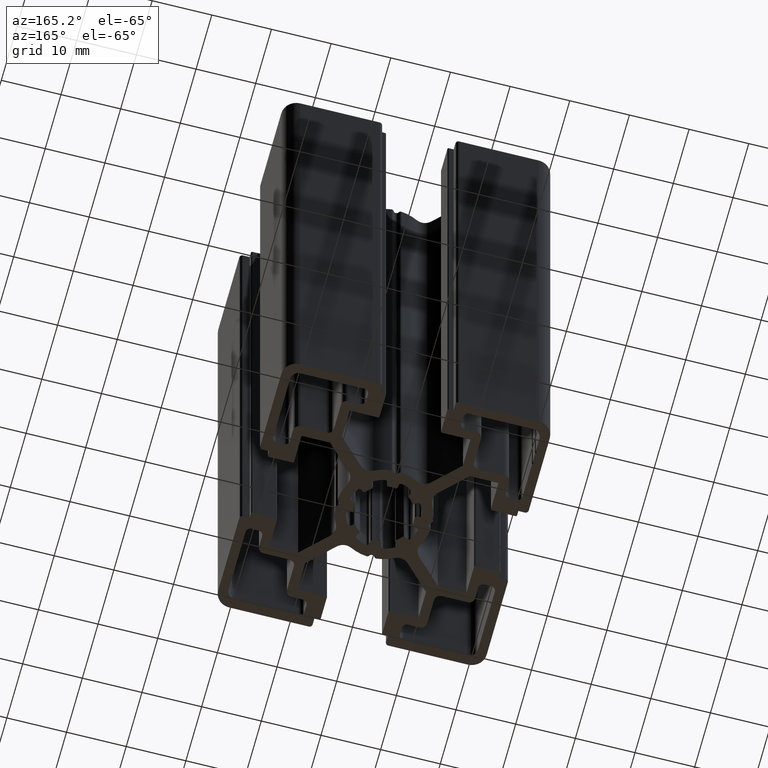
[diagram: clean part render]
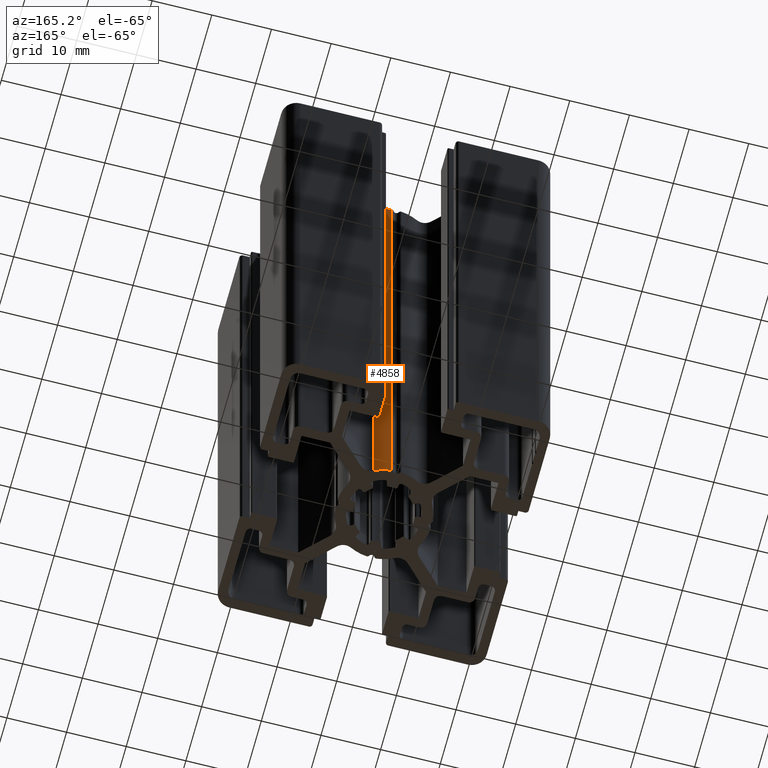
[diagram: same view with one face highlighted and labeled with its STEP entity id]
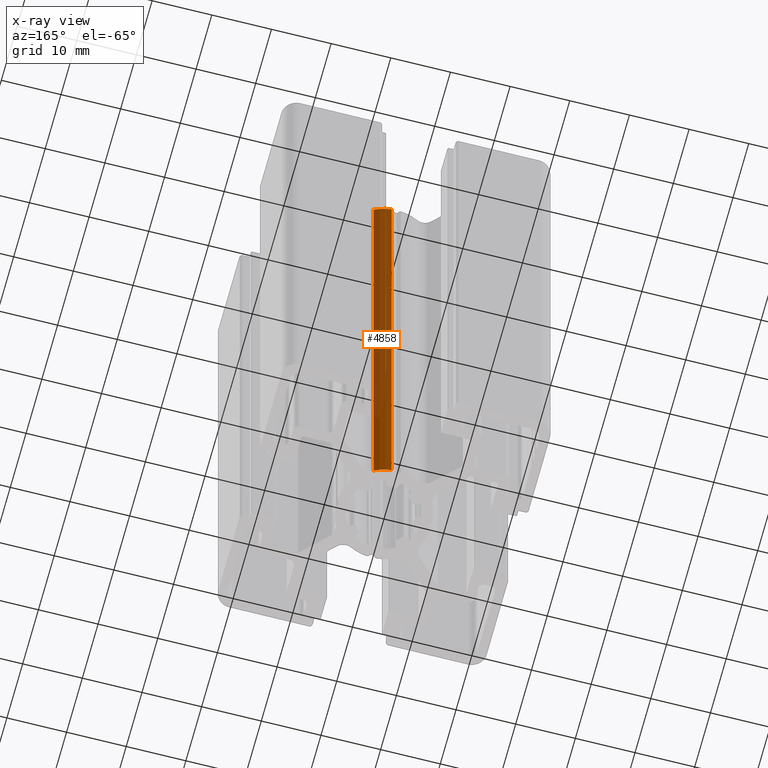
[diagram: x-ray of the same camera — body ghosted, the highlighted face saturated]
A machine part, auxiliary view. The second image highlights one B-rep face of the part: STEP entity #4858.
The next image is the same camera in x-ray: the body ghosted, the highlighted face saturated — about 54% of this face is hidden behind the body in this view.
In plain terms, the highlighted cylindrical surface (partial cylindrical patch) has radius 8 mm, axis along (0, 0, 1).
Its self-contained STEP definition (entity closure, byte-faithful):
#223=CIRCLE('',#5307,8.);
#224=CIRCLE('',#5308,8.);
#396=CYLINDRICAL_SURFACE('',#5306,8.);
#602=FACE_OUTER_BOUND('',#850,.T.);
#850=EDGE_LOOP('',(#3777,#3778,#3779,#3780));
#1249=LINE('',#7987,#1715);
#1251=LINE('',#7995,#1717);
#1715=VECTOR('',#6503,100.);
#1717=VECTOR('',#6511,100.);
#2211=VERTEX_POINT('',#7983);
#2213=VERTEX_POINT('',#7986);
#2215=VERTEX_POINT('',#7992);
#2216=VERTEX_POINT('',#7994);
#2870=EDGE_CURVE('',#2213,#2211,#1249,.T.);
#2873=EDGE_CURVE('',#2215,#2211,#223,.T.);
#2874=EDGE_CURVE('',#2216,#2215,#1251,.T.);
#2875=EDGE_CURVE('',#2213,#2216,#224,.T.);
#3777=ORIENTED_EDGE('',*,*,#2873,.F.);
#3778=ORIENTED_EDGE('',*,*,#2874,.F.);
#3779=ORIENTED_EDGE('',*,*,#2875,.F.);
#3780=ORIENTED_EDGE('',*,*,#2870,.T.);
#4858=ADVANCED_FACE('',(#602),#396,.T.);
#5306=AXIS2_PLACEMENT_3D('',#7991,#6507,#6508);
#5307=AXIS2_PLACEMENT_3D('',#7993,#6509,#6510);
#5308=AXIS2_PLACEMENT_3D('',#7996,#6512,#6513);
#6503=DIRECTION('',(0.,0.,1.));
#6507=DIRECTION('center_axis',(0.,0.,1.));
#6508=DIRECTION('ref_axis',(-0.453069171741454,-0.891475364560072,0.));
#6509=DIRECTION('center_axis',(0.,0.,1.));
#6510=DIRECTION('ref_axis',(-0.453069171741454,-0.891475364560072,0.));
#6511=DIRECTION('',(0.,0.,1.));
#6512=DIRECTION('center_axis',(0.,0.,-1.));
#6513=DIRECTION('ref_axis',(-0.453069171741454,-0.891475364560072,0.));
#7983=CARTESIAN_POINT('',(0.82606464693602,7.95723671596297,100.));
#7986=CARTESIAN_POINT('',(0.82606464693602,7.95723671596297,0.));
#7987=CARTESIAN_POINT('',(0.82606464693602,7.95723671596297,0.));
#7991=CARTESIAN_POINT('Origin',(6.1224084024758E-7,-1.29235431245434E-7,
0.));
#7992=CARTESIAN_POINT('',(3.62455398617247,7.13180278724514,100.));
#7993=CARTESIAN_POINT('Origin',(6.1224084024758E-7,-1.29235431245434E-7,
100.));
#7994=CARTESIAN_POINT('',(3.62455398617247,7.13180278724514,0.));
#7995=CARTESIAN_POINT('',(3.62455398617247,7.13180278724514,0.));
#7996=CARTESIAN_POINT('Origin',(6.1224084024758E-7,-1.29235431245434E-7,
0.));